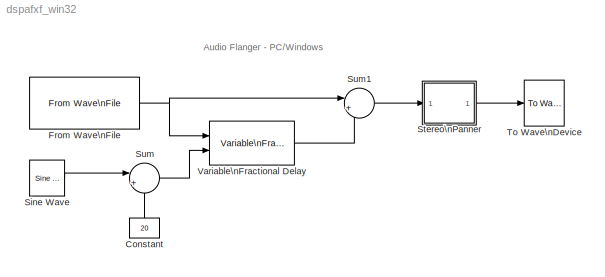
MODEL dspafxf_win32
KIND model
CONFIG AbsTol = auto
CONFIG FixedStep = auto
CONFIG MaxStep = auto
CONFIG MinStep = auto
CONFIG PreLoadFcn = load dspafxf;
CONFIG RelTol = 1e-3
CONFIG Solver = FixedStepDiscrete
CONFIG SolverMode = Auto
CONFIG StartTime = 0.0
CONFIG StopTime = 3.928
BLOCK [Constant] Constant
  Value = 20
BLOCK [Reference] From Wave\nFile  REF=dspwin32/From Wave\nFile
  FileName = dspafxf.wav
  MinBufSize = 512
  Ports = [0, 1]
  SamplesPerFrame = 128
  SourceBlock = dspwin32/From Wave\nFile
  SourceType = From Wave File
  dType = Double
BLOCK [Reference] Sine Wave  REF=dspsrcs4/Sine Wave
  Amplitude = 15
  CompMethod = Trigonometric fcn
  Frequency = 1/3.394
  OutComplex = Real
  Phase = pi/4
  Ports = [0, 1]
  ResetState = Restart at time zero
  SampleMode = Discrete
  SampleTime = 1/fs_afxf
  SamplesPerFrame = 128
  SourceBlock = dspsrcs4/Sine Wave
  SourceType = Sine Wave
  TableSize = Speed
  additionalParams = off
  dataType = double
  fracBitsMode = Best precision
  numFracBits = 14
  udDataType = sfix(16)
  wordLen = 16
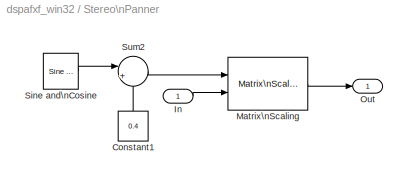
BLOCK [SubSystem] Stereo\nPanner
  MaskIconFrame = on
  MaskIconOpaque = on
  MaskIconRotate = none
  MaskIconUnits = autoscale
  Ports = [1, 1]
  TreatAsAtomicUnit = off
BLOCK [Constant] Stereo\nPanner/Constant1
  Value = 0.4
BLOCK [Inport] Stereo\nPanner/In
BLOCK [Reference] Stereo\nPanner/Matrix\nScaling  REF=dspmtrx3/Matrix\nScaling
  Ports = [2, 1]
  SourceBlock = dspmtrx3/Matrix\nScaling
  SourceType = Matrix Scaling
  mode = Scale Rows (D*A)
BLOCK [Outport] Stereo\nPanner/Out
BLOCK [Reference] Stereo\nPanner/Sine and\nCosine  REF=dspsrcs4/Sine Wave
  Amplitude = 0.4
  CompMethod = Trigonometric fcn
  Frequency = 1/3.934 * 1.5
  OutComplex = Real
  Phase = [-pi/2 pi/2]
  Ports = [0, 1]
  ResetState = Restart at time zero
  SampleMode = Discrete
  SampleTime = 1/fs_afxf
  SamplesPerFrame = 128
  SourceBlock = dspsrcs4/Sine Wave
  SourceType = Sine Wave
  TableSize = Speed
  additionalParams = off
  dataType = double
  fracBitsMode = Best precision
  numFracBits = 14
  udDataType = sfix(16)
  wordLen = 16
BLOCK [Sum] Stereo\nPanner/Sum2
  IconShape = round
  Inputs = |++
  Ports = [2, 1]
BLOCK [Sum] Sum
  IconShape = round
  Inputs = |++
  Ports = [2, 1]
BLOCK [Sum] Sum1
  IconShape = round
  Inputs = |++
  Ports = [2, 1]
BLOCK [Reference] To Wave\nDevice  REF=dspwin32/To Wave\nDevice
  Ports = [1]
  SourceBlock = dspwin32/To Wave\nDevice
  SourceType = To Wave Device
  bufDuration = 3
  enable24Bit = off
  initDelay = 0.1
  useDefaultDevice = on
BLOCK [Reference] Variable\nFractional Delay  REF=dspsigops/Variable\nFractional Delay
  L = 8
  Ports = [2, 1]
  R = 10
  SourceBlock = dspsigops/Variable\nFractional Delay
  SourceType = Variable Fractional Delay
  alpha = 0.5
  dmax = 100
  ic = 0
  mode = FIR Interpolation
ANNOTATION (root): Audio Flanger - PC/Windows
LINE Constant:1 -> Sum:2
NET From Wave\nFile:1 -> Sum1:1, Variable\nFractional Delay:1
LINE Sine Wave:1 -> Sum:1
LINE Stereo\nPanner/Constant1:1 -> Stereo\nPanner/Sum2:2
LINE Stereo\nPanner/In:1 -> Stereo\nPanner/Matrix\nScaling:2
LINE Stereo\nPanner/Matrix\nScaling:1 -> Stereo\nPanner/Out:1
LINE Stereo\nPanner/Sine and\nCosine:1 -> Stereo\nPanner/Sum2:1
LINE Stereo\nPanner/Sum2:1 -> Stereo\nPanner/Matrix\nScaling:1
LINE Stereo\nPanner:1 -> To Wave\nDevice:1
LINE Sum1:1 -> Stereo\nPanner:1
LINE Sum:1 -> Variable\nFractional Delay:2
LINE Variable\nFractional Delay:1 -> Sum1:2
note: NET lines group one-source signal fan-out (src -> all destinations, sorted); 1:1 wires keep LINE
